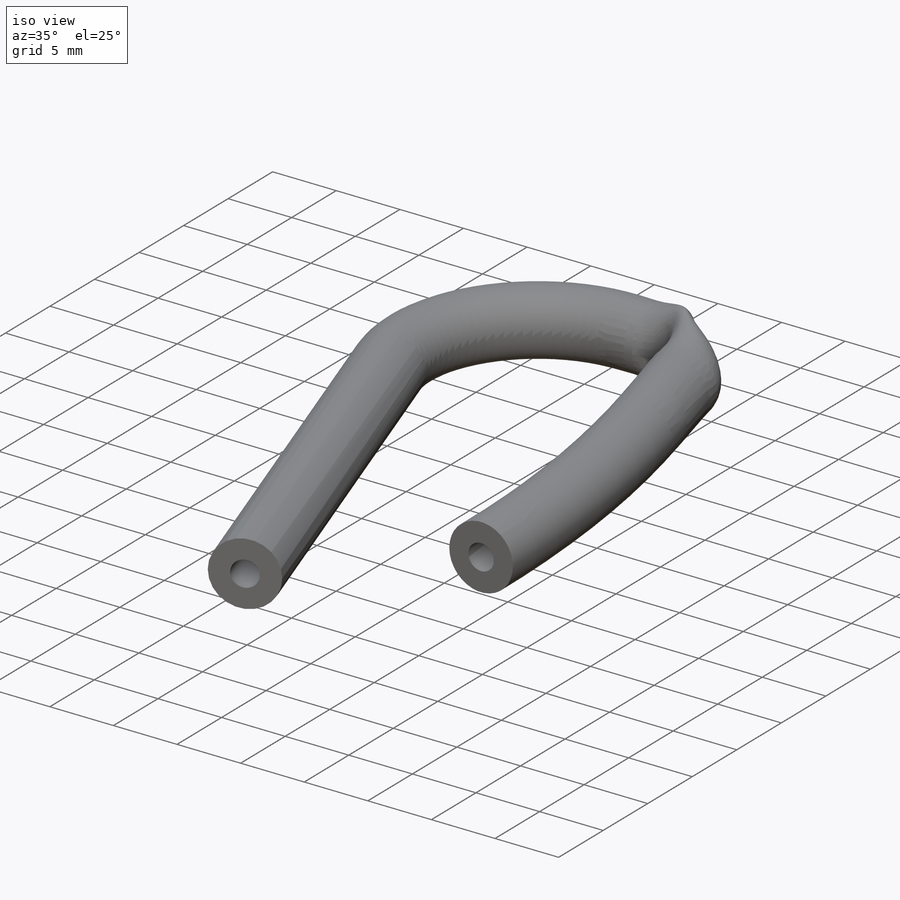
[diagram: iso view]
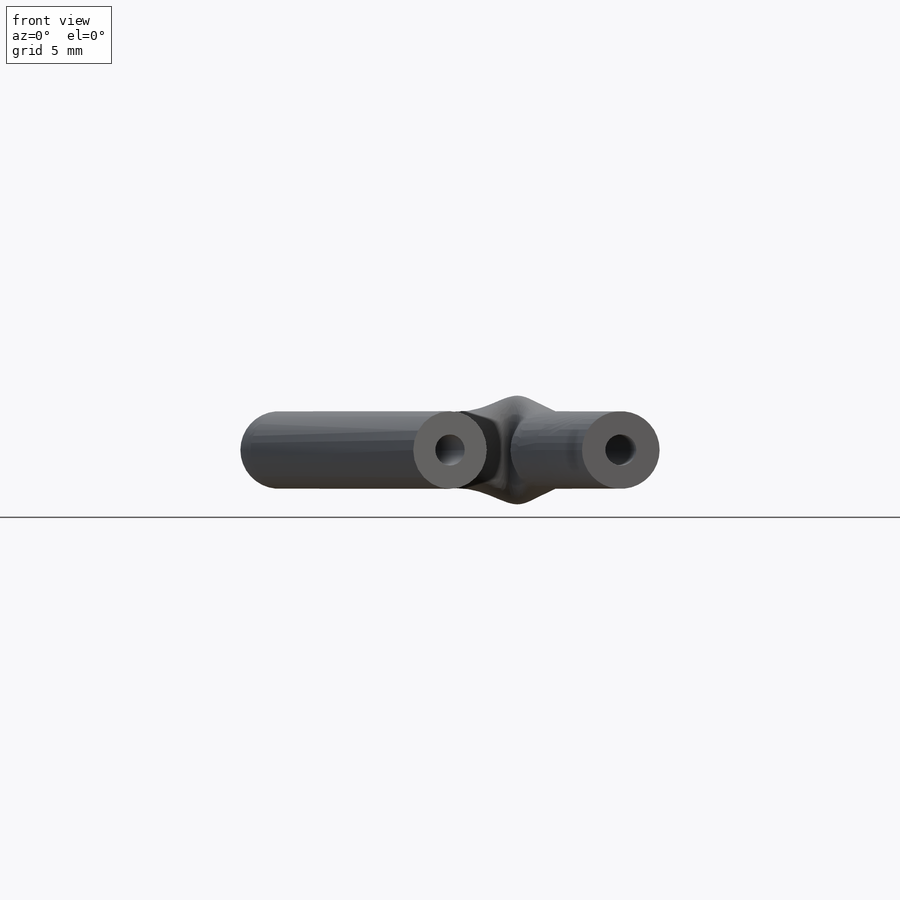
[diagram: front view]
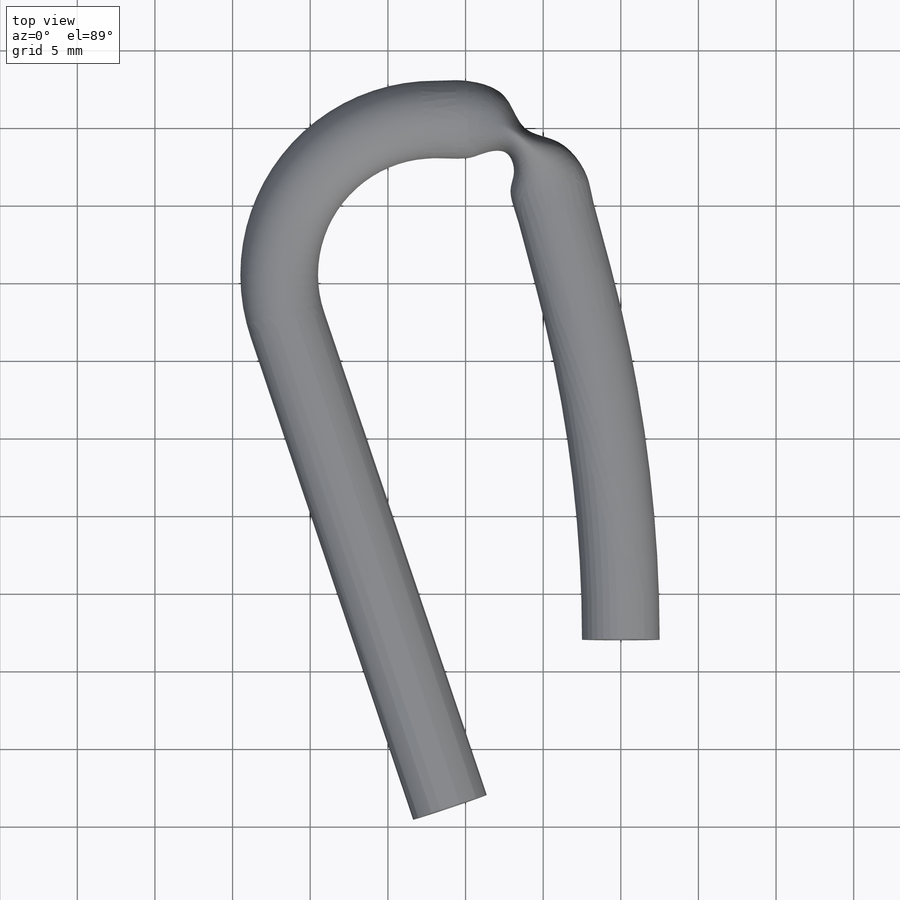
[diagram: top view]
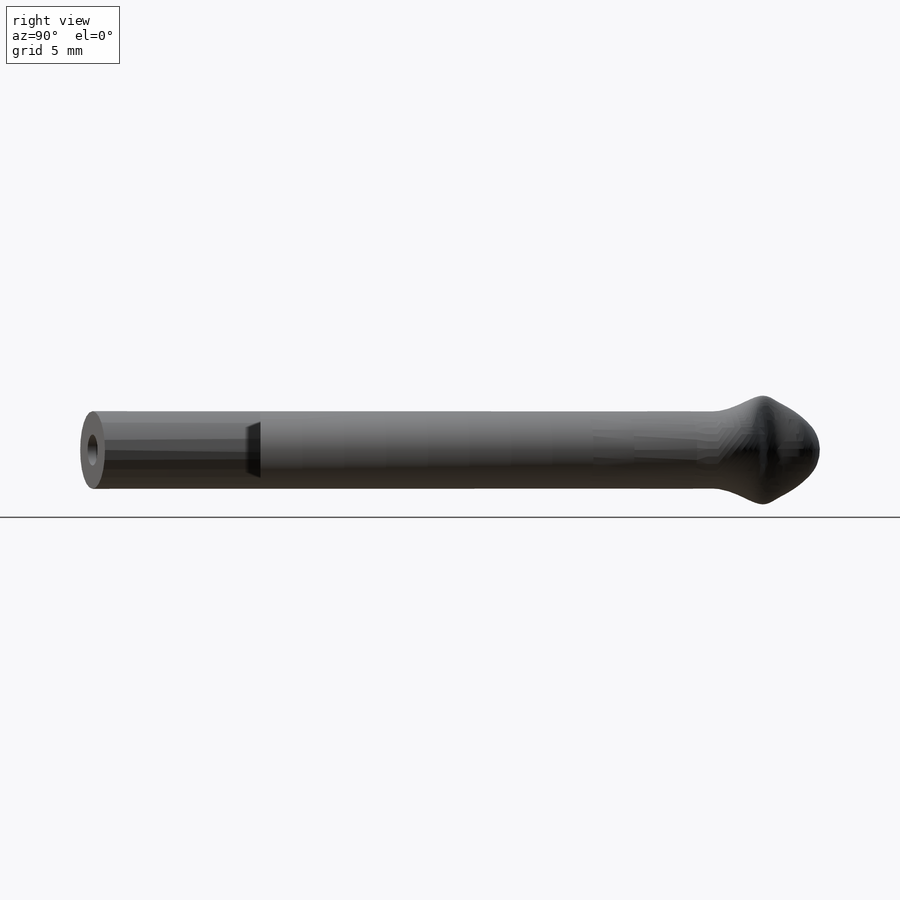
[diagram: right view]
SOLIDWORKS PART (.sldprt)
format: sldprt  version: not decoded by parser v0  size: 926,720 bytes
history: native  units: mm
features: sketch x30, plane x9, sweep x6, material x1, revolve x1, cut_extrude x1 (+15 scaffold rows collapsed)
feature tree (63):
  scaffold x15  (default folders/planes/origin — collapsed)
  material  "Material <not specified>"
  sketch  "Sketch1"  dims[c1.D1=5.5mm c1.D2=5.0mm c2.D2=75.0deg]
  sketch  "Sketch2"  dims[D1=5.0mm]
  sketch  "Sketch3"  dims[D1=5.0mm D2=2.0mm]
  plane  "Plane1"
  sketch  "Sketch4"  dims[D1=1.0mm D2=2.5mm D3=6.0mm D4=4.0mm]
  plane  "Plane2"
  sketch  "Sketch5"  dims[c1.D5=1.1mm c1.D1=0.1mm c1.D2=3.2mm c1.D3=2.5mm c1.D4=7.0mm c1.D6=3.0mm c2.D1=0.1mm c2.D5=1.5mm]
  plane  "Plane3"
  sketch  "Sketch6"  dims[D1=0.8mm D2=2.5mm D3=3.5mm D4=6.0mm]
  plane  "Plane4"
  sketch  "Sketch7"  dims[D1=2.0mm D2=5.0mm]
  plane  "Plane5"  Offset=2mm
  sketch  "Sketch8"
  plane  "Plane6"  Offset=2mm
  sketch  "Sketch9"
  sketch  "Sketch10"
  sketch  "Sketch11"
  sketch  "Sketch12"
  sketch  "Sketch13"
  sketch  "Sketch14"
  sketch  "Sketch15"
  sketch  "Sketch16"
  sketch  "Sketch17"  dims[D1=10.0mm D2=38.8mm D3=1.0mm]
  sketch  "Sketch18"  dims[D1=0.0mm]
  sweep  "Sweep1"
  plane  "Plane7"
  sketch  "Sketch19"  dims[D1=10.0mm D2=9.5mm]
  sketch  "Sketch20"  dims[D1=0.0mm]
  sweep  "Sweep2"
  plane  "Plane8"
  sketch  "Sketch21"  dims[D1=7.0mm D2=1.0mm]
  sketch  "Sketch22"  dims[D1=0.0mm]
  sweep  "Sweep3"
  sketch  "Sketch23"  dims[c1.D3=2.0mm c1.D5=6.0mm c1.D6=4.0mm c1.D8=3.0mm c1.D1=0.25mm c1.D2=3.0mm c1.D4=4.5mm c1.D7=8.5mm c1.D9=~2.322876mm c1.D10=~2.322876mm c2.D9=~0.884802mm c2.D3=6.0mm]
  revolve  "Revolve1"  Angle=360deg
  sketch  "Sketch24"  dims[D1=10.0mm D2=28.0mm]
  sketch  "Sketch25"  dims[D1=0.0mm]
  sweep  "Sweep4"
  sketch  "Sketch26"
  cut_extrude  "Cut-Extrude1"  Depth=8mm
  sketch  "Sketch27"  dims[D1=5.0mm D2=2.0mm]
  sketch  "Sketch28"
  sweep  "Sweep5"
  plane  "Plane9"
  sketch  "Sketch29"  dims[D1=22.0mm D2=5.0mm D3=122.0mm]
  sketch  "Sketch30"  dims[D1=0.0mm]
  sweep  "Sweep6"
decode coverage: 21 of 38 modeling features carry decoded parameters
note: ~ marks probable driven/reference dimensions
summary: profile_refs inferred from adjacent sketches, not decoded
note: suppression state not decoded; provenance and decode notes live in map.json
